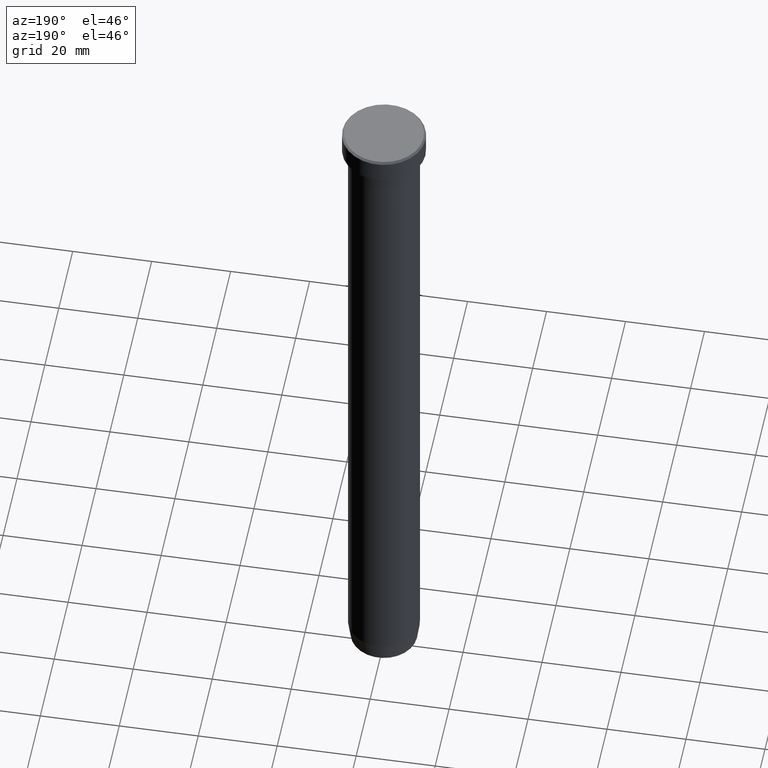
[diagram: clean part render]
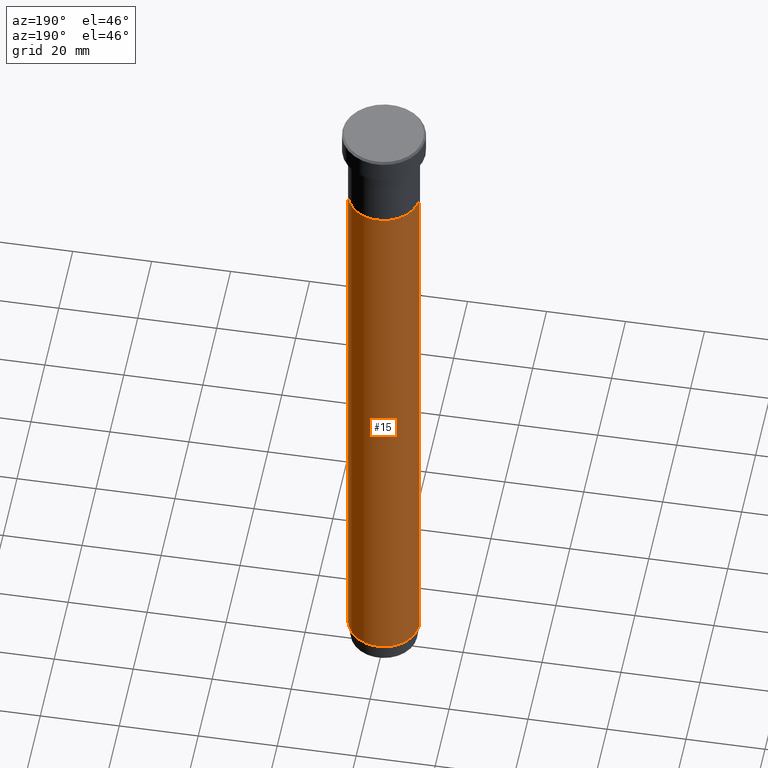
[diagram: same view with one face highlighted and labeled with its STEP entity id]
A machine part, auxiliary view. The second image highlights one B-rep face of the part: STEP entity #15.
In plain terms, the highlighted cylindrical surface (edge-blend (fillet) strip) has radius 9 mm, axis along (-0, -0, 1).
Its self-contained STEP definition (entity closure, byte-faithful):
#15 = ADVANCED_FACE ( 'NONE', ( #274 ), #357, .T. ) ;
#40 = CIRCLE ( 'NONE', #444, 9.000000000000000000 ) ;
#42 = LINE ( 'NONE', #555, #305 ) ;
#55 = EDGE_CURVE ( 'NONE', #199, #448, #596, .T. ) ;
#83 = AXIS2_PLACEMENT_3D ( 'NONE', #188, #234, #238 ) ;
#89 = DIRECTION ( 'NONE',  ( -0.000000000000000000, -0.000000000000000000, 1.000000000000000000 ) ) ;
#90 = AXIS2_PLACEMENT_3D ( 'NONE', #440, #480, #116 ) ;
#116 = DIRECTION ( 'NONE',  ( 1.000000000000000000, 0.000000000000000000, 0.000000000000000000 ) ) ;
#139 = EDGE_CURVE ( 'NONE', #220, #450, #42, .T. ) ;
#143 = ORIENTED_EDGE ( 'NONE', *, *, #447, .F. ) ;
#188 = CARTESIAN_POINT ( 'NONE',  ( 0.000000000000000000, 0.000000000000000000, 0.000000000000000000 ) ) ;
#192 = CIRCLE ( 'NONE', #90, 9.000000000000000000 ) ;
#199 = VERTEX_POINT ( 'NONE', #303 ) ;
#220 = VERTEX_POINT ( 'NONE', #385 ) ;
#221 = CARTESIAN_POINT ( 'NONE',  ( 0.000000000000000000, 0.000000000000000000, -22.00000000000000000 ) ) ;
#222 = VECTOR ( 'NONE', #89, 1000.000000000000000 ) ;
#223 = CARTESIAN_POINT ( 'NONE',  ( 9.000000000000000000, 0.000000000000000000, -22.00000000000000000 ) ) ;
#225 = CARTESIAN_POINT ( 'NONE',  ( -9.000000000000000000, 1.102182119232617714E-15, -22.00000000000000000 ) ) ;
#234 = DIRECTION ( 'NONE',  ( -0.000000000000000000, -0.000000000000000000, 1.000000000000000000 ) ) ;
#238 = DIRECTION ( 'NONE',  ( 1.000000000000000000, 0.000000000000000000, 0.000000000000000000 ) ) ;
#272 = DIRECTION ( 'NONE',  ( 1.000000000000000000, 0.000000000000000000, 0.000000000000000000 ) ) ;
#274 = FACE_OUTER_BOUND ( 'NONE', #510, .T. ) ;
#290 = EDGE_CURVE ( 'NONE', #220, #199, #192, .T. ) ;
#292 = DIRECTION ( 'NONE',  ( -0.000000000000000000, -0.000000000000000000, 1.000000000000000000 ) ) ;
#303 = CARTESIAN_POINT ( 'NONE',  ( -9.000000000000000000, 1.102182119232617714E-15, -175.0000000000000000 ) ) ;
#305 = VECTOR ( 'NONE', #292, 1000.000000000000000 ) ;
#357 = CYLINDRICAL_SURFACE ( 'NONE', #83, 9.000000000000000000 ) ;
#360 = CARTESIAN_POINT ( 'NONE',  ( -9.000000000000000000, 1.102182119232617714E-15, 0.000000000000000000 ) ) ;
#375 = ORIENTED_EDGE ( 'NONE', *, *, #55, .T. ) ;
#385 = CARTESIAN_POINT ( 'NONE',  ( 9.000000000000000000, 0.000000000000000000, -175.0000000000000000 ) ) ;
#440 = CARTESIAN_POINT ( 'NONE',  ( 0.000000000000000000, 0.000000000000000000, -175.0000000000000000 ) ) ;
#444 = AXIS2_PLACEMENT_3D ( 'NONE', #221, #489, #272 ) ;
#447 = EDGE_CURVE ( 'NONE', #450, #448, #40, .T. ) ;
#448 = VERTEX_POINT ( 'NONE', #225 ) ;
#450 = VERTEX_POINT ( 'NONE', #223 ) ;
#469 = ORIENTED_EDGE ( 'NONE', *, *, #139, .F. ) ;
#480 = DIRECTION ( 'NONE',  ( -0.000000000000000000, -0.000000000000000000, 1.000000000000000000 ) ) ;
#489 = DIRECTION ( 'NONE',  ( -0.000000000000000000, -0.000000000000000000, 1.000000000000000000 ) ) ;
#510 = EDGE_LOOP ( 'NONE', ( #597, #375, #143, #469 ) ) ;
#555 = CARTESIAN_POINT ( 'NONE',  ( 9.000000000000000000, 0.000000000000000000, 0.000000000000000000 ) ) ;
#596 = LINE ( 'NONE', #360, #222 ) ;
#597 = ORIENTED_EDGE ( 'NONE', *, *, #290, .T. ) ;